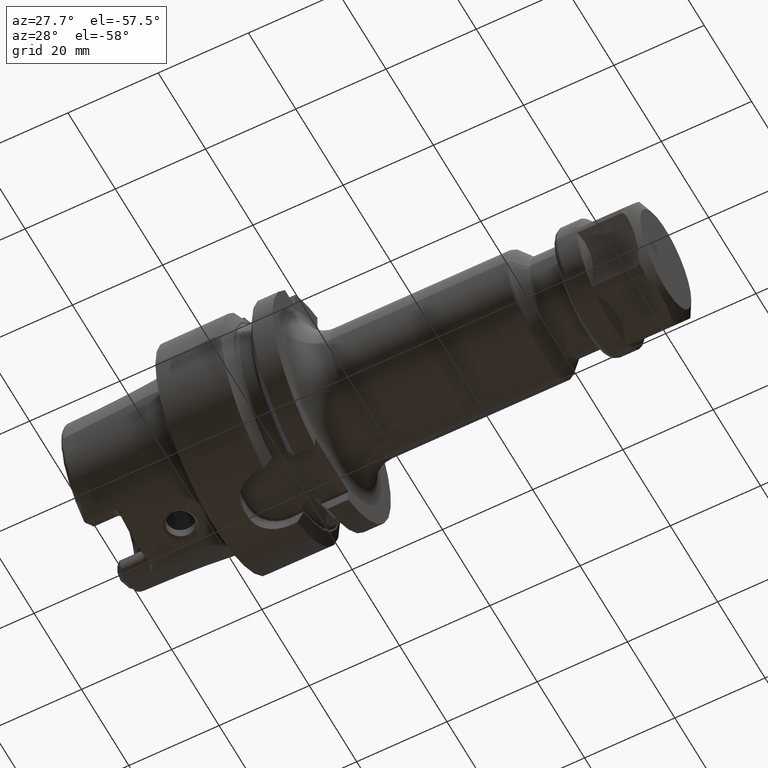
[diagram: clean part render]
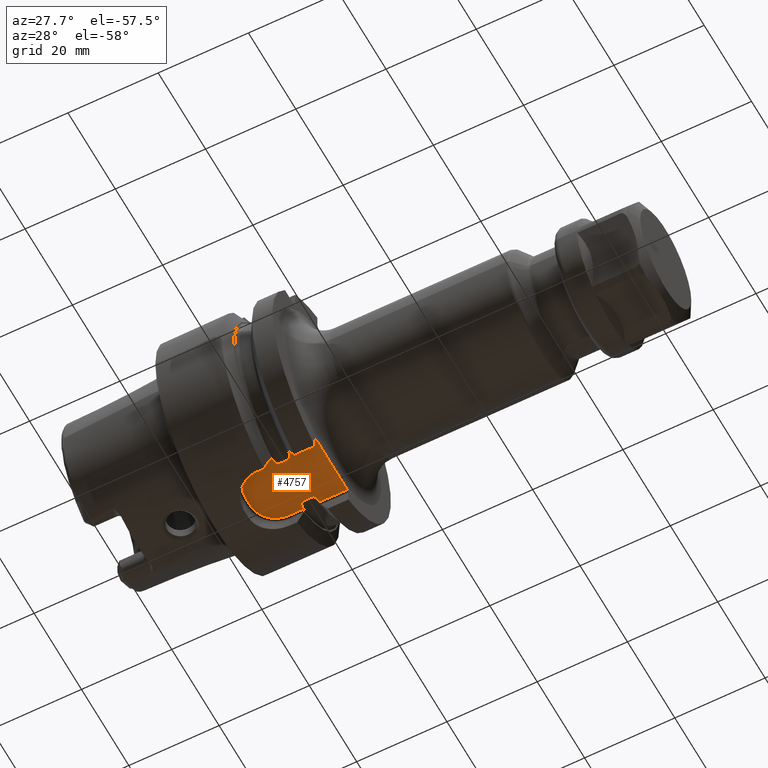
[diagram: same view with one face highlighted and labeled with its STEP entity id]
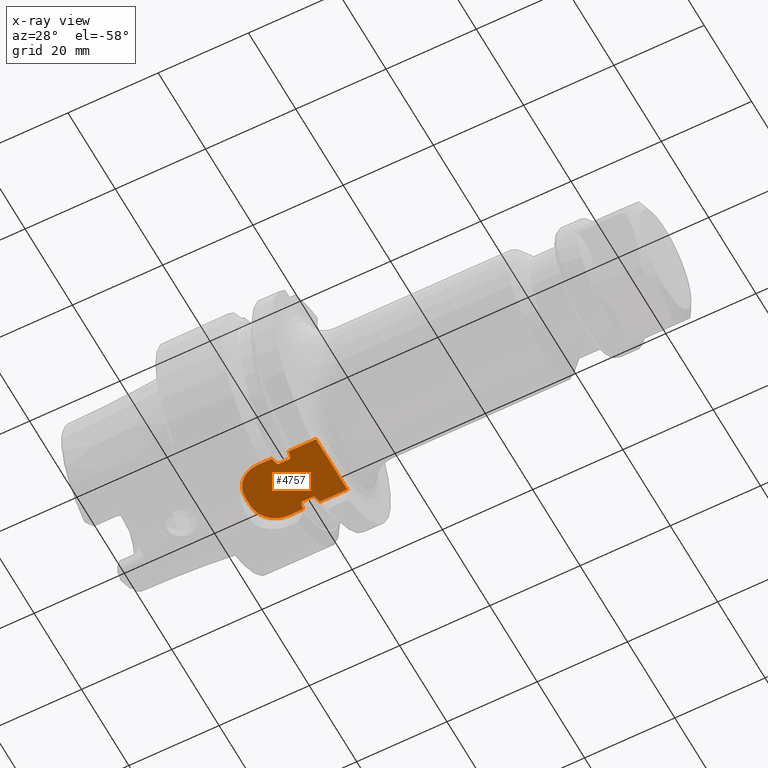
[diagram: x-ray of the same camera — body ghosted, the highlighted face saturated]
A machine part, auxiliary view. The second image highlights one B-rep face of the part: STEP entity #4757.
The next image is the same camera in x-ray: the body ghosted, the highlighted face saturated — about 0% of this face is hidden behind the body in this view.
In plain terms, the highlighted planar face has unit normal (0, 0, -1).
Its self-contained STEP definition (entity closure, byte-faithful):
#1239=DIRECTION('',(1.E0,0.E0,0.E0));
#1240=VECTOR('',#1239,2.325E0);
#1241=CARTESIAN_POINT('',(1.68375E1,4.936154880066E0,-2.09E1));
#1242=LINE('',#1241,#1240);
#1247=DIRECTION('',(-1.E0,0.E0,0.E0));
#1248=VECTOR('',#1247,2.325E0);
#1249=CARTESIAN_POINT('',(1.91625E1,-4.936154880066E0,-2.09E1));
#1250=LINE('',#1249,#1248);
#1260=DIRECTION('',(-1.E0,0.E0,0.E0));
#1261=VECTOR('',#1260,6.101156887692E0);
#1262=CARTESIAN_POINT('',(2.595E1,6.6175E0,-2.09E1));
#1263=LINE('',#1262,#1261);
#1264=CARTESIAN_POINT('',(1.91625E1,4.936154880066E0,-2.09E1));
#1265=CARTESIAN_POINT('',(1.918665467019E1,4.936154880066E0,-2.09E1));
#1266=CARTESIAN_POINT('',(1.923332994473E1,4.946110970950E0,-2.09E1));
#1267=CARTESIAN_POINT('',(1.930011591954E1,4.987363827586E0,-2.09E1));
#1268=CARTESIAN_POINT('',(1.935887911623E1,5.045587941002E0,-2.09E1));
#1269=CARTESIAN_POINT('',(1.941409238306E1,5.118852703346E0,-2.09E1));
#1270=CARTESIAN_POINT('',(1.946686951149E1,5.206868186285E0,-2.09E1));
#1271=CARTESIAN_POINT('',(1.951654929273E1,5.306591079075E0,-2.09E1));
#1272=CARTESIAN_POINT('',(1.956328216778E1,5.416157301983E0,-2.09E1));
#1273=CARTESIAN_POINT('',(1.960894126842E1,5.539258725452E0,-2.09E1));
#1274=CARTESIAN_POINT('',(1.965389165734E1,5.677919230316E0,-2.09E1));
#1275=CARTESIAN_POINT('',(1.969822164317E1,5.834375899493E0,-2.09E1));
#1276=CARTESIAN_POINT('',(1.974113045025E1,6.008640625694E0,-2.09E1));
#1277=CARTESIAN_POINT('',(1.978136032274E1,6.198390319559E0,-2.09E1));
#1278=CARTESIAN_POINT('',(1.981792011132E1,6.401808965172E0,-2.09E1));
#1279=CARTESIAN_POINT('',(1.983911091140E1,6.544318876890E0,-2.09E1));
#1280=CARTESIAN_POINT('',(1.984884311231E1,6.6175E0,-2.09E1));
#1282=CARTESIAN_POINT('',(1.615115688769E1,6.6175E0,-2.09E1));
#1283=CARTESIAN_POINT('',(1.616059630509E1,6.546520457630E0,-2.09E1));
#1284=CARTESIAN_POINT('',(1.618088531299E1,6.409869418194E0,-2.09E1));
#1285=CARTESIAN_POINT('',(1.621443132032E1,6.220998282659E0,-2.09E1));
#1286=CARTESIAN_POINT('',(1.625039234994E1,6.047146631886E0,-2.09E1));
#1287=CARTESIAN_POINT('',(1.628822835750E1,5.887550476669E0,-2.09E1));
#1288=CARTESIAN_POINT('',(1.632763220365E1,5.741181051456E0,-2.09E1));
#1289=CARTESIAN_POINT('',(1.636846939363E1,5.607087615814E0,-2.09E1));
#1290=CARTESIAN_POINT('',(1.641059322023E1,5.484860455900E0,-2.09E1));
#1291=CARTESIAN_POINT('',(1.645411702621E1,5.373761682911E0,-2.09E1));
#1292=CARTESIAN_POINT('',(1.649938571891E1,5.273050106936E0,-2.09E1));
#1293=CARTESIAN_POINT('',(1.654715417932E1,5.182075517512E0,-2.09E1));
#1294=CARTESIAN_POINT('',(1.659745553597E1,5.102240920369E0,-2.09E1));
#1295=CARTESIAN_POINT('',(1.665166641432E1,5.033763431053E0,-2.09E1));
#1296=CARTESIAN_POINT('',(1.670962462800E1,4.980199904962E0,-2.09E1));
#1297=CARTESIAN_POINT('',(1.677132698095E1,4.944940158707E0,-2.09E1));
#1298=CARTESIAN_POINT('',(1.681501380385E1,4.936154880066E0,-2.09E1));
#1299=CARTESIAN_POINT('',(1.68375E1,4.936154880066E0,-2.09E1));
#1301=DIRECTION('',(-9.999999999980E-1,-1.425575556479E-6,-1.425508190296E-6));
#1302=VECTOR('',#1301,3.201156882222E0);
#1303=CARTESIAN_POINT('',(1.615115688769E1,6.6175E0,-2.09E1));
#1304=LINE('',#1303,#1302);
#1305=CARTESIAN_POINT('',(1.295E1,1.0175E0,-2.090001235475E1));
#1306=DIRECTION('',(0.E0,0.E0,1.E0));
#1307=DIRECTION('',(0.E0,1.E0,0.E0));
#1308=AXIS2_PLACEMENT_3D('',#1305,#1306,#1307);
#1310=DIRECTION('',(1.737381746262E-11,-1.E0,1.737425391393E-11));
#1311=VECTOR('',#1310,2.034999989443E0);
#1312=CARTESIAN_POINT('',(7.350004563456E0,1.017499994919E0,-2.090000456331E1));
#1313=LINE('',#1312,#1311);
#1314=CARTESIAN_POINT('',(1.295E1,-1.0175E0,-2.090001235475E1));
#1315=DIRECTION('',(0.E0,0.E0,1.E0));
#1316=DIRECTION('',(-1.E0,0.E0,0.E0));
#1317=AXIS2_PLACEMENT_3D('',#1314,#1315,#1316);
#1319=DIRECTION('',(9.999999999980E-1,-1.425564511357E-6,1.425519235067E-6));
#1320=VECTOR('',#1319,3.201156882617E0);
#1321=CARTESIAN_POINT('',(1.295000000508E1,-6.617495436544E0,
-2.090000456331E1));
#1322=LINE('',#1321,#1320);
#1323=CARTESIAN_POINT('',(1.68375E1,-4.936154880066E0,-2.09E1));
#1324=CARTESIAN_POINT('',(1.681345606457E1,-4.936154880066E0,-2.09E1));
#1325=CARTESIAN_POINT('',(1.676698530885E1,-4.945925133428E0,-2.09E1));
#1326=CARTESIAN_POINT('',(1.669960911009E1,-4.987608552877E0,-2.09E1));
#1327=CARTESIAN_POINT('',(1.664193161405E1,-5.044774109148E0,-2.09E1));
#1328=CARTESIAN_POINT('',(1.658737237837E1,-5.116767588353E0,-2.09E1));
#1329=CARTESIAN_POINT('',(1.653557172948E1,-5.202458913993E0,-2.09E1));
#1330=CARTESIAN_POINT('',(1.648556128151E1,-5.301966030164E0,-2.09E1));
#1331=CARTESIAN_POINT('',(1.643873721871E1,-5.411146947143E0,-2.09E1));
#1332=CARTESIAN_POINT('',(1.639376288385E1,-5.531573678958E0,-2.09E1));
#1333=CARTESIAN_POINT('',(1.634913192844E1,-5.668029679674E0,-2.09E1));
#1334=CARTESIAN_POINT('',(1.630446446036E1,-5.824082333451E0,-2.09E1));
#1335=CARTESIAN_POINT('',(1.625965026334E1,-6.004767270383E0,-2.09E1));
#1336=CARTESIAN_POINT('',(1.621744735973E1,-6.203990186122E0,-2.09E1));
#1337=CARTESIAN_POINT('',(1.618022700776E1,-6.413250850859E0,-2.09E1));
#1338=CARTESIAN_POINT('',(1.616020989583E1,-6.549426055627E0,-2.09E1));
#1339=CARTESIAN_POINT('',(1.615115688769E1,-6.6175E0,-2.09E1));
#1341=CARTESIAN_POINT('',(1.984884311231E1,-6.6175E0,-2.09E1));
#1342=CARTESIAN_POINT('',(1.983885092737E1,-6.542363931297E0,-2.09E1));
#1343=CARTESIAN_POINT('',(1.981704668932E1,-6.396126860454E0,-2.09E1));
#1344=CARTESIAN_POINT('',(1.977923007990E1,-6.187247203076E0,-2.09E1));
#1345=CARTESIAN_POINT('',(1.973767465988E1,-5.993408381723E0,-2.09E1));
#1346=CARTESIAN_POINT('',(1.969360613341E1,-5.816932279692E0,-2.09E1));
#1347=CARTESIAN_POINT('',(1.964876348989E1,-5.661136401593E0,-2.09E1));
#1348=CARTESIAN_POINT('',(1.960396346365E1,-5.525076779550E0,-2.09E1));
#1349=CARTESIAN_POINT('',(1.955898227230E1,-5.405518395711E0,-2.09E1));
#1350=CARTESIAN_POINT('',(1.951336994287E1,-5.299900978171E0,-2.09E1));
#1351=CARTESIAN_POINT('',(1.946552509322E1,-5.204594573135E0,-2.09E1));
#1352=CARTESIAN_POINT('',(1.941408222465E1,-5.118978889210E0,-2.09E1));
#1353=CARTESIAN_POINT('',(1.935972880715E1,-5.046557415227E0,-2.09E1));
#1354=CARTESIAN_POINT('',(1.930162561613E1,-4.989013790764E0,-2.09E1));
#1355=CARTESIAN_POINT('',(1.923913329801E1,-4.948719441684E0,-2.09E1));
#1356=CARTESIAN_POINT('',(1.918918212874E1,-4.936154880066E0,-2.09E1));
#1357=CARTESIAN_POINT('',(1.91625E1,-4.936154880066E0,-2.09E1));
#1359=DIRECTION('',(1.E0,0.E0,0.E0));
#1360=VECTOR('',#1359,6.101156887692E0);
#1361=CARTESIAN_POINT('',(1.984884311231E1,-6.6175E0,-2.09E1));
#1362=LINE('',#1361,#1360);
#1363=CARTESIAN_POINT('',(2.595E1,2.046926799542E0,-2.090000223253E1));
#1364=CARTESIAN_POINT('',(2.595E1,1.592408275712E0,-2.090000223253E1));
#1365=CARTESIAN_POINT('',(2.595075189099E1,6.831463133951E-1,
-2.089999906019E1));
#1366=CARTESIAN_POINT('',(2.595075189092E1,-6.831411261963E-1,
-2.089999994052E1));
#1367=CARTESIAN_POINT('',(2.595E1,-1.592424138717E0,-2.090000076532E1));
#1368=CARTESIAN_POINT('',(2.595E1,-2.046942624870E0,-2.090000076532E1));
#1390=DIRECTION('',(0.E0,-1.E0,1.674457834983E-7));
#1391=VECTOR('',#1390,4.570557375130E0);
#1392=CARTESIAN_POINT('',(2.595E1,-2.046942624870E0,-2.090000076532E1));
#1393=LINE('',#1392,#1391);
#1431=DIRECTION('',(0.E0,-9.999999999999E-1,-4.884583228412E-7));
#1432=VECTOR('',#1431,4.570573200459E0);
#1433=CARTESIAN_POINT('',(2.595E1,6.6175E0,-2.09E1));
#1434=LINE('',#1433,#1432);
#3072=CARTESIAN_POINT('',(1.68375E1,-4.936154880066E0,-2.09E1));
#3074=VERTEX_POINT('',#3072);
#3077=CARTESIAN_POINT('',(1.68375E1,4.936154880066E0,-2.09E1));
#3079=VERTEX_POINT('',#3077);
#3080=CARTESIAN_POINT('',(1.91625E1,-4.936154880066E0,-2.09E1));
#3082=VERTEX_POINT('',#3080);
#3085=CARTESIAN_POINT('',(1.91625E1,4.936154880066E0,-2.09E1));
#3087=VERTEX_POINT('',#3085);
#3094=VERTEX_POINT('',#1282);
#3095=VERTEX_POINT('',#1339);
#3096=VERTEX_POINT('',#1341);
#3097=VERTEX_POINT('',#1280);
#3137=CARTESIAN_POINT('',(7.350015025546E0,-1.0175E0,-2.090001235475E1));
#3138=CARTESIAN_POINT('',(1.295E1,-6.617484974454E0,-2.090001235475E1));
#3139=VERTEX_POINT('',#3137);
#3140=VERTEX_POINT('',#3138);
#3145=CARTESIAN_POINT('',(7.350004563456E0,1.017499994919E0,-2.090000456331E1));
#3146=VERTEX_POINT('',#3145);
#3149=CARTESIAN_POINT('',(1.295E1,6.617484974454E0,-2.090001235475E1));
#3150=VERTEX_POINT('',#3149);
#3161=CARTESIAN_POINT('',(2.595E1,6.6175E0,-2.09E1));
#3163=VERTEX_POINT('',#3161);
#3166=CARTESIAN_POINT('',(2.595E1,-6.6175E0,-2.09E1));
#3168=VERTEX_POINT('',#3166);
#3310=CARTESIAN_POINT('',(2.595E1,-2.046953376682E0,-2.089999956636E1));
#3312=VERTEX_POINT('',#3310);
#3331=CARTESIAN_POINT('',(2.595E1,2.046926799542E0,-2.090000223253E1));
#3332=VERTEX_POINT('',#3331);
#4722=CARTESIAN_POINT('',(0.E0,0.E0,-2.09E1));
#4723=DIRECTION('',(0.E0,0.E0,-1.E0));
#4724=DIRECTION('',(1.E0,0.E0,0.E0));
#4725=AXIS2_PLACEMENT_3D('',#4722,#4723,#4724);
#4726=PLANE('',#4725);
#4728=ORIENTED_EDGE('',*,*,#4727,.F.);
#4730=ORIENTED_EDGE('',*,*,#4729,.F.);
#4732=ORIENTED_EDGE('',*,*,#4731,.T.);
#4734=ORIENTED_EDGE('',*,*,#4733,.F.);
#4735=ORIENTED_EDGE('',*,*,#4698,.F.);
#4736=ORIENTED_EDGE('',*,*,#4679,.F.);
#4738=ORIENTED_EDGE('',*,*,#4737,.T.);
#4740=ORIENTED_EDGE('',*,*,#4739,.T.);
#4742=ORIENTED_EDGE('',*,*,#4741,.T.);
#4744=ORIENTED_EDGE('',*,*,#4743,.T.);
#4746=ORIENTED_EDGE('',*,*,#4745,.T.);
#4747=ORIENTED_EDGE('',*,*,#4651,.F.);
#4748=ORIENTED_EDGE('',*,*,#4712,.F.);
#4750=ORIENTED_EDGE('',*,*,#4749,.F.);
#4752=ORIENTED_EDGE('',*,*,#4751,.T.);
#4754=ORIENTED_EDGE('',*,*,#4753,.F.);
#4755=EDGE_LOOP('',(#4728,#4730,#4732,#4734,#4735,#4736,#4738,#4740,#4742,#4744,
#4746,#4747,#4748,#4750,#4752,#4754));
#4756=FACE_OUTER_BOUND('',#4755,.F.);
#4757=ADVANCED_FACE('',(#4756),#4726,.T.);
#1281=B_SPLINE_CURVE_WITH_KNOTS('',3,(#1264,#1265,#1266,#1267,#1268,#1269,#1270,
#1271,#1272,#1273,#1274,#1275,#1276,#1277,#1278,#1279,#1280),.UNSPECIFIED.,.F.,
.F.,(4,1,1,1,1,1,1,1,1,1,1,1,1,1,4),(0.E0,7.142857142857E-2,1.428571428571E-1,
2.142857142857E-1,2.857142857143E-1,3.571428571429E-1,4.285714285714E-1,5.E-1,
5.714285714286E-1,6.428571428571E-1,7.142857142857E-1,7.857142857143E-1,
8.571428571429E-1,9.285714285714E-1,1.E0),.UNSPECIFIED.);
#1300=B_SPLINE_CURVE_WITH_KNOTS('',3,(#1282,#1283,#1284,#1285,#1286,#1287,#1288,
#1289,#1290,#1291,#1292,#1293,#1294,#1295,#1296,#1297,#1298,#1299),
.UNSPECIFIED.,.F.,.F.,(4,1,1,1,1,1,1,1,1,1,1,1,1,1,1,4),(0.E0,6.666666666667E-2,
1.333333333333E-1,2.E-1,2.666666666667E-1,3.333333333333E-1,4.E-1,
4.666666666667E-1,5.333333333333E-1,6.E-1,6.666666666667E-1,7.333333333333E-1,
8.E-1,8.666666666667E-1,9.333333333333E-1,1.E0),.UNSPECIFIED.);
#1309=CIRCLE('',#1308,5.599984974454E0);
#1318=CIRCLE('',#1317,5.599984974454E0);
#1340=B_SPLINE_CURVE_WITH_KNOTS('',3,(#1323,#1324,#1325,#1326,#1327,#1328,#1329,
#1330,#1331,#1332,#1333,#1334,#1335,#1336,#1337,#1338,#1339),.UNSPECIFIED.,.F.,
.F.,(4,1,1,1,1,1,1,1,1,1,1,1,1,1,4),(0.E0,7.142857142857E-2,1.428571428571E-1,
2.142857142857E-1,2.857142857143E-1,3.571428571429E-1,4.285714285714E-1,5.E-1,
5.714285714286E-1,6.428571428571E-1,7.142857142857E-1,7.857142857143E-1,
8.571428571429E-1,9.285714285714E-1,1.E0),.UNSPECIFIED.);
#1358=B_SPLINE_CURVE_WITH_KNOTS('',3,(#1341,#1342,#1343,#1344,#1345,#1346,#1347,
#1348,#1349,#1350,#1351,#1352,#1353,#1354,#1355,#1356,#1357),.UNSPECIFIED.,.F.,
.F.,(4,1,1,1,1,1,1,1,1,1,1,1,1,1,4),(0.E0,7.142857142857E-2,1.428571428571E-1,
2.142857142857E-1,2.857142857143E-1,3.571428571429E-1,4.285714285714E-1,5.E-1,
5.714285714286E-1,6.428571428571E-1,7.142857142857E-1,7.857142857143E-1,
8.571428571429E-1,9.285714285714E-1,1.E0),.UNSPECIFIED.);
#1369=B_SPLINE_CURVE_WITH_KNOTS('',3,(#1363,#1364,#1365,#1366,#1367,#1368),
.UNSPECIFIED.,.F.,.F.,(4,1,1,4),(0.E0,3.333333333333E-1,6.666666666667E-1,1.E0),
.UNSPECIFIED.);
#4651=EDGE_CURVE('',#3074,#3095,#1340,.T.);
#4679=EDGE_CURVE('',#3094,#3079,#1300,.T.);
#4698=EDGE_CURVE('',#3079,#3087,#1242,.T.);
#4712=EDGE_CURVE('',#3082,#3074,#1250,.T.);
#4727=EDGE_CURVE('',#3332,#3312,#1369,.T.);
#4729=EDGE_CURVE('',#3163,#3332,#1434,.T.);
#4731=EDGE_CURVE('',#3163,#3097,#1263,.T.);
#4733=EDGE_CURVE('',#3087,#3097,#1281,.T.);
#4737=EDGE_CURVE('',#3094,#3150,#1304,.T.);
#4739=EDGE_CURVE('',#3150,#3146,#1309,.T.);
#4741=EDGE_CURVE('',#3146,#3139,#1313,.T.);
#4743=EDGE_CURVE('',#3139,#3140,#1318,.T.);
#4745=EDGE_CURVE('',#3140,#3095,#1322,.T.);
#4749=EDGE_CURVE('',#3096,#3082,#1358,.T.);
#4751=EDGE_CURVE('',#3096,#3168,#1362,.T.);
#4753=EDGE_CURVE('',#3312,#3168,#1393,.T.);